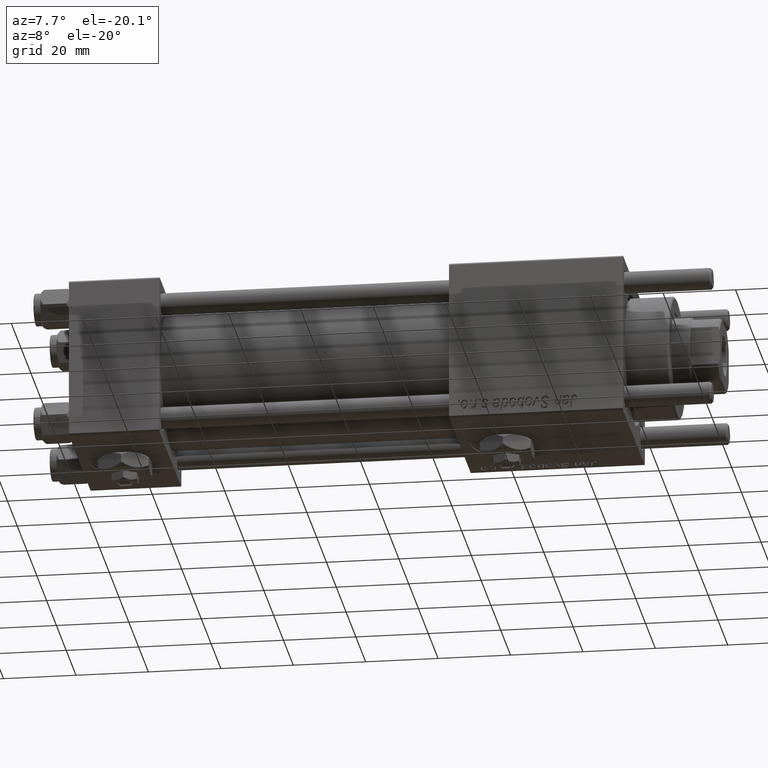
[diagram: clean part render]
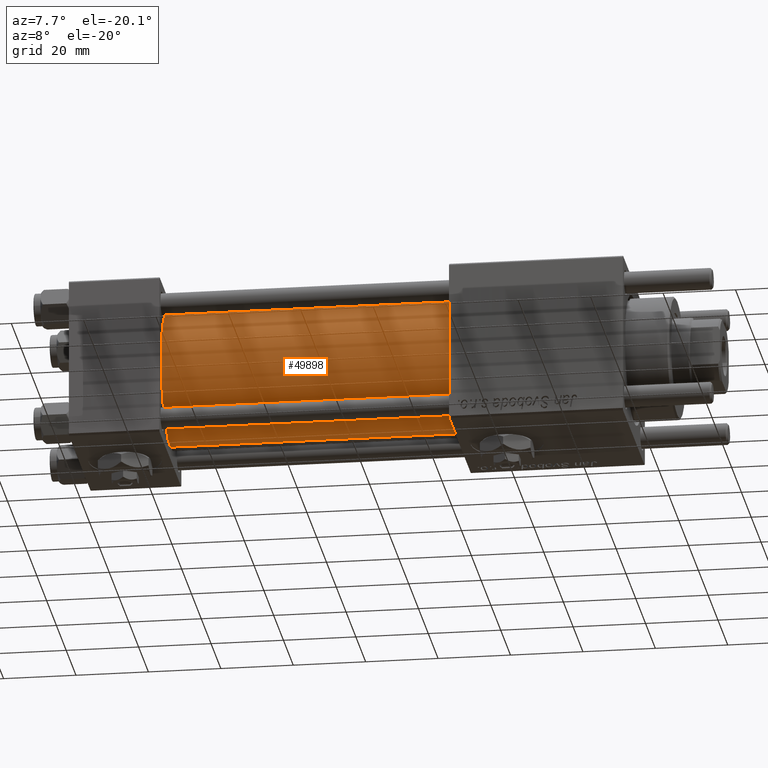
[diagram: same view with one face highlighted and labeled with its STEP entity id]
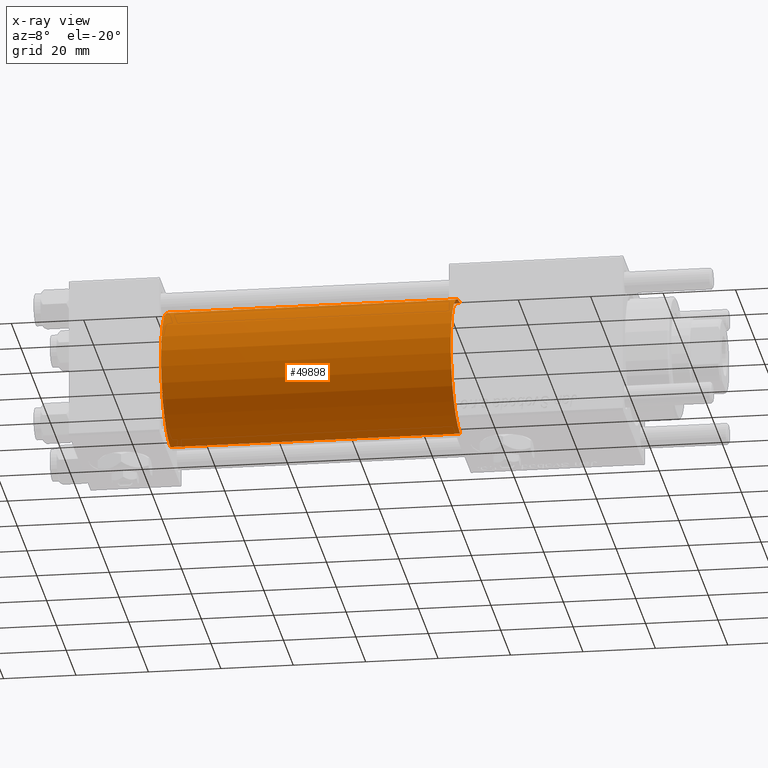
[diagram: x-ray of the same camera — body ghosted, the highlighted face saturated]
A machine part, auxiliary view. The second image highlights one B-rep face of the part: STEP entity #49898.
The next image is the same camera in x-ray: the body ghosted, the highlighted face saturated — about 0% of this face is hidden behind the body in this view.
In plain terms, the highlighted cylindrical surface (partial cylindrical patch) has radius 19 mm, axis along (-1, -0, -0).
Its self-contained STEP definition (entity closure, byte-faithful):
#967 = CIRCLE ( 'NONE', #1878, 19.00000000000000000 ) ;
#1426 = VERTEX_POINT ( 'NONE', #45166 ) ;
#1878 = AXIS2_PLACEMENT_3D ( 'NONE', #30153, #47731, #7256 ) ;
#2133 = VECTOR ( 'NONE', #16658, 1000.000000000000000 ) ;
#4174 = ORIENTED_EDGE ( 'NONE', *, *, #17249, .T. ) ;
#4560 = LINE ( 'NONE', #19382, #25684 ) ;
#7256 = DIRECTION ( 'NONE',  ( 0.000000000000000000, 0.000000000000000000, -1.000000000000000000 ) ) ;
#8531 = CARTESIAN_POINT ( 'NONE',  ( 105.0000000000000142, -2.752562955852396712E-16, -19.00000000000000000 ) ) ;
#8655 = DIRECTION ( 'NONE',  ( 0.000000000000000000, 0.000000000000000000, 1.000000000000000000 ) ) ;
#15325 = EDGE_CURVE ( 'NONE', #1426, #20206, #967, .T. ) ;
#15715 = AXIS2_PLACEMENT_3D ( 'NONE', #17296, #30684, #8655 ) ;
#16658 = DIRECTION ( 'NONE',  ( -1.000000000000000000, -0.000000000000000000, -0.000000000000000000 ) ) ;
#17249 = EDGE_CURVE ( 'NONE', #1426, #42650, #4560, .T. ) ;
#17296 = CARTESIAN_POINT ( 'NONE',  ( 24.99999999999999289, -2.602085213965210642E-15, 0.000000000000000000 ) ) ;
#18679 = ORIENTED_EDGE ( 'NONE', *, *, #27576, .F. ) ;
#19382 = CARTESIAN_POINT ( 'NONE',  ( 105.0000000000000142, -2.602085213965210642E-15, 19.00000000000000000 ) ) ;
#20206 = VERTEX_POINT ( 'NONE', #56520 ) ;
#22246 = ORIENTED_EDGE ( 'NONE', *, *, #47542, .T. ) ;
#23425 = AXIS2_PLACEMENT_3D ( 'NONE', #55083, #58654, #36062 ) ;
#25684 = VECTOR ( 'NONE', #37548, 1000.000000000000000 ) ;
#27576 = EDGE_CURVE ( 'NONE', #20206, #31734, #57136, .T. ) ;
#30153 = CARTESIAN_POINT ( 'NONE',  ( 105.0000000000000142, -2.602085213965210642E-15, 0.000000000000000000 ) ) ;
#30684 = DIRECTION ( 'NONE',  ( 1.000000000000000000, -0.000000000000000000, 0.000000000000000000 ) ) ;
#31734 = VERTEX_POINT ( 'NONE', #54853 ) ;
#35722 = CIRCLE ( 'NONE', #15715, 19.00000000000000000 ) ;
#36062 = DIRECTION ( 'NONE',  ( 0.000000000000000000, 0.000000000000000000, 1.000000000000000000 ) ) ;
#37548 = DIRECTION ( 'NONE',  ( -1.000000000000000000, -0.000000000000000000, -0.000000000000000000 ) ) ;
#41111 = CYLINDRICAL_SURFACE ( 'NONE', #23425, 19.00000000000000000 ) ;
#42650 = VERTEX_POINT ( 'NONE', #56499 ) ;
#45166 = CARTESIAN_POINT ( 'NONE',  ( 105.0000000000000142, -2.602085213965210642E-15, 19.00000000000000000 ) ) ;
#47542 = EDGE_CURVE ( 'NONE', #42650, #31734, #35722, .T. ) ;
#47731 = DIRECTION ( 'NONE',  ( 1.000000000000000000, 0.000000000000000000, 0.000000000000000000 ) ) ;
#49898 = ADVANCED_FACE ( 'NONE', ( #54785 ), #41111, .T. ) ;
#52001 = EDGE_LOOP ( 'NONE', ( #18679, #53690, #4174, #22246 ) ) ;
#53690 = ORIENTED_EDGE ( 'NONE', *, *, #15325, .F. ) ;
#54785 = FACE_OUTER_BOUND ( 'NONE', #52001, .T. ) ;
#54853 = CARTESIAN_POINT ( 'NONE',  ( 24.99999999999999289, -2.752562955852396712E-16, -19.00000000000000000 ) ) ;
#55083 = CARTESIAN_POINT ( 'NONE',  ( 105.0000000000000142, -2.602085213965210642E-15, 0.000000000000000000 ) ) ;
#56499 = CARTESIAN_POINT ( 'NONE',  ( 24.99999999999999289, -2.602085213965210642E-15, 19.00000000000000000 ) ) ;
#56520 = CARTESIAN_POINT ( 'NONE',  ( 105.0000000000000142, -2.752562955852396712E-16, -19.00000000000000000 ) ) ;
#57136 = LINE ( 'NONE', #8531, #2133 ) ;
#58654 = DIRECTION ( 'NONE',  ( -1.000000000000000000, -0.000000000000000000, -0.000000000000000000 ) ) ;